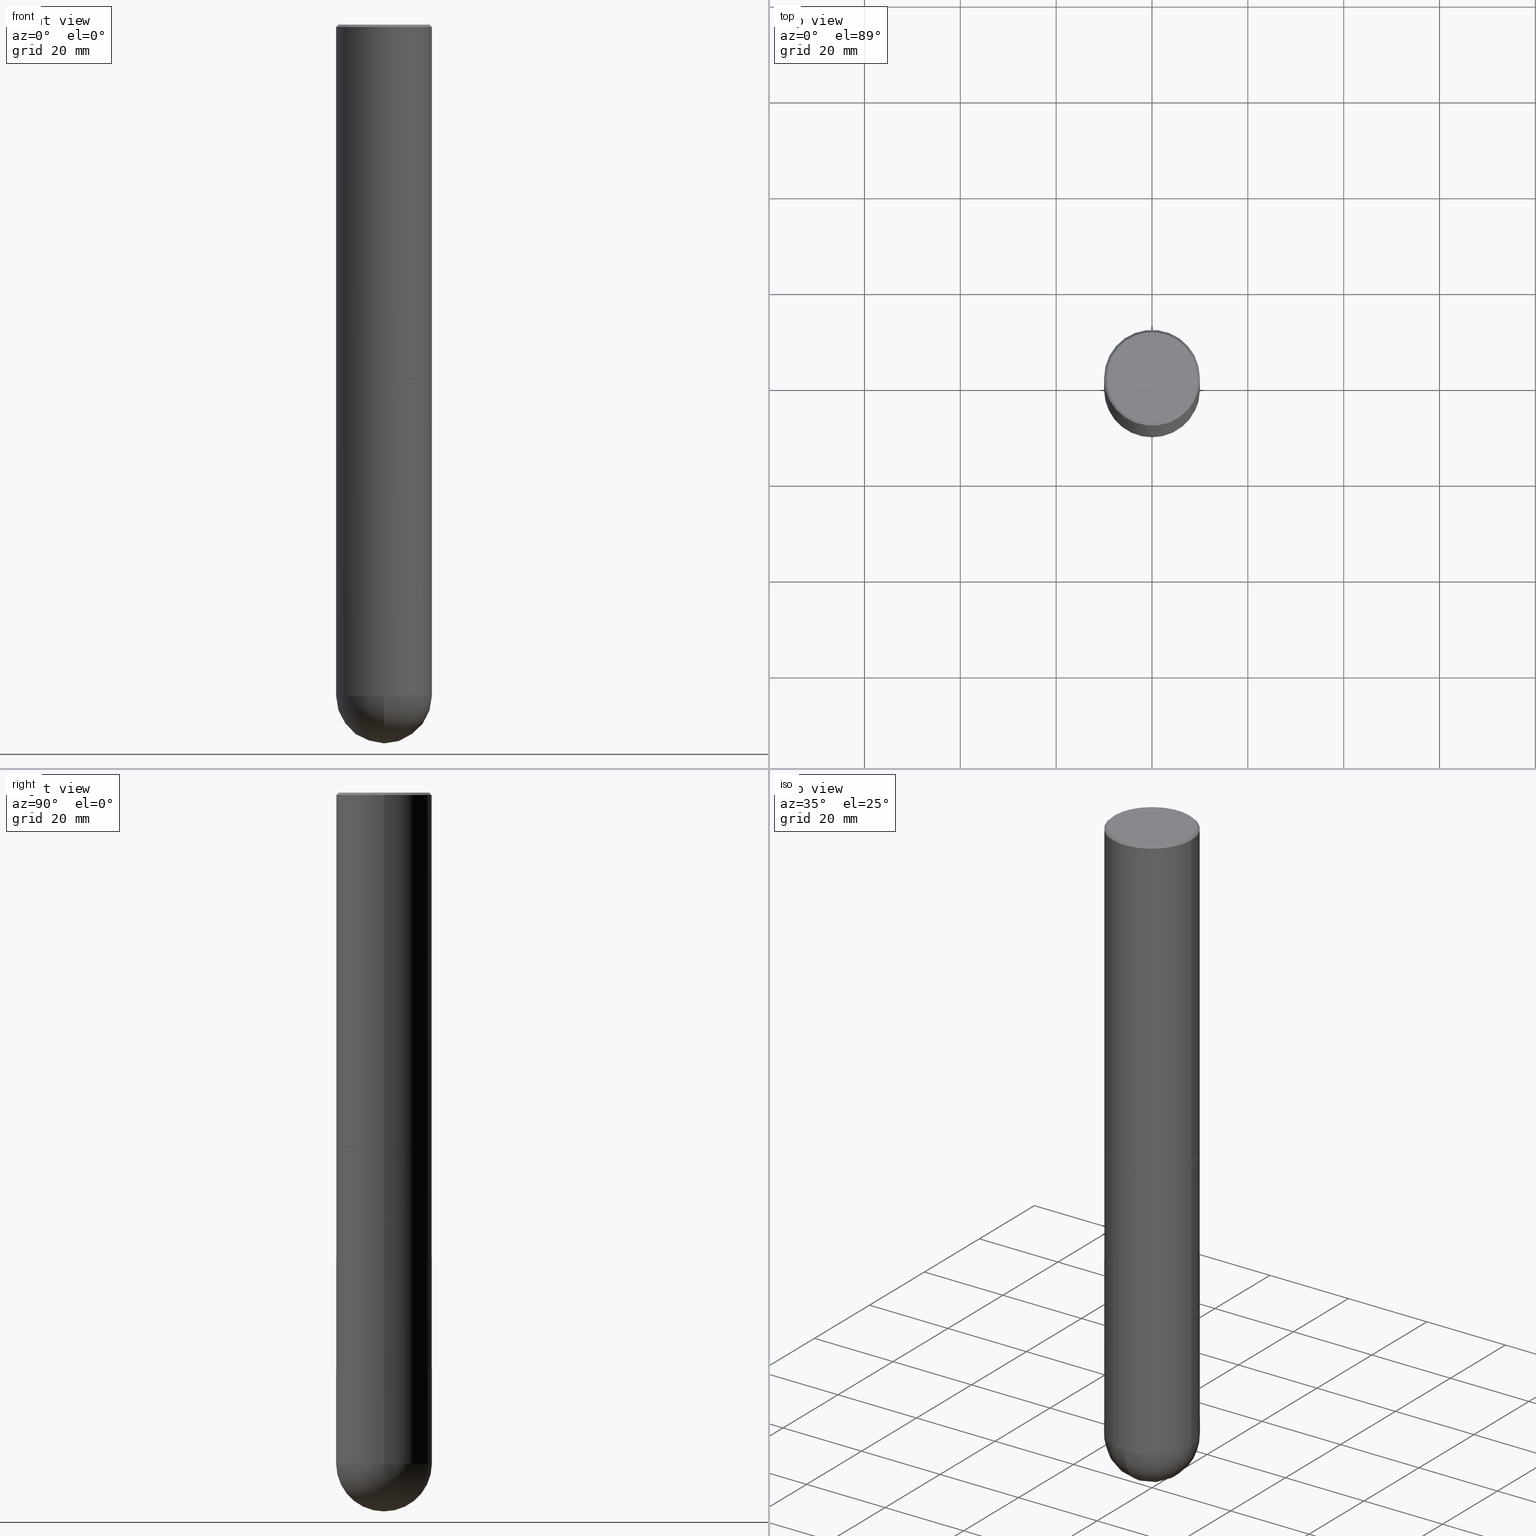
[diagram: canonical four-view strip — front | top / right | iso, engineering-drawing reading convention]
A machine part, canonical four-view strip (front | top / right | iso — engineering-drawing reading convention). The complete STEP part file that produces these views, byte-faithful:
ISO-10303-21;
HEADER;
FILE_DESCRIPTION (( 'STEP AP203' ),
    '1' );
FILE_NAME ('49581.STEP',
    '2024-04-10T12:28:59',
    ( '' ),
    ( '' ),
    'SwSTEP 2.0',
    'SolidWorks 2023',
    '' );
FILE_SCHEMA (( 'CONFIG_CONTROL_DESIGN' ));
ENDSEC;

DATA;
#1 = CYLINDRICAL_SURFACE ( 'NONE', #284, 0.3937000000000001054 ) ;
#2 = APPLICATION_CONTEXT ( 'configuration controlled 3d designs of mechanical parts and assemblies' ) ;
#3 = DIRECTION ( 'NONE',  ( -2.445468806185136597E-29, 3.491481338843145583E-15, 1.000000000000000000 ) ) ;
#4 = VECTOR ( 'NONE', #260, 39.37007874015748143 ) ;
#5 = CARTESIAN_POINT ( 'NONE',  ( 1.314781518801735134E-28, -1.971852921157570065E-14, -5.511800000000000033 ) ) ;
#6 = DIRECTION ( 'NONE',  ( 6.982962677686265922E-15, 1.000000000000000000, -2.775563112689116301E-15 ) ) ;
#7 = CARTESIAN_POINT ( 'NONE',  ( 7.220735744022852519E-29, -1.030929694920215502E-14, -2.952700000000000102 ) ) ;
#8 = CIRCLE ( 'NONE', #76, 0.3926999999999999935 ) ;
#9 = DESIGN_CONTEXT ( 'detailed design', #2, 'design' ) ;
#10 = CARTESIAN_POINT ( 'NONE',  ( 1.412743020541493694E-28, -2.106901824243703318E-14, -5.905499999999999972 ) ) ;
#11 = CC_DESIGN_PERSON_AND_ORGANIZATION_ASSIGNMENT ( #275, #206, ( #238 ) ) ;
#12 = VERTEX_POINT ( 'NONE', #219 ) ;
#13 = EDGE_CURVE ( 'NONE', #343, #245, #139, .T. ) ;
#14 = DIRECTION ( 'NONE',  ( 1.000000000000000000, -6.982962677686265133E-15, 0.000000000000000000 ) ) ;
#15 = ORIENTED_EDGE ( 'NONE', *, *, #256, .T. ) ;
#16 = DIRECTION ( 'NONE',  ( 1.000000000000000000, -6.982962677686266711E-15, 4.876176775795935793E-29 ) ) ;
#17 = ORIENTED_EDGE ( 'NONE', *, *, #33, .F. ) ;
#18 = DIRECTION ( 'NONE',  ( 1.000000000000000000, -6.982962677686269077E-15, 0.000000000000000000 ) ) ;
#19 = VERTEX_POINT ( 'NONE', #120 ) ;
#20 = ORIENTED_EDGE ( 'NONE', *, *, #115, .F. ) ;
#21 = PERSON_AND_ORGANIZATION ( #63, #57 ) ;
#22 = CIRCLE ( 'NONE', #71, 0.3937000000000000499 ) ;
#23 = VERTEX_POINT ( 'NONE', #182 ) ;
#24 = AXIS2_PLACEMENT_3D ( 'NONE', #399, #265, #248 ) ;
#25 = DIRECTION ( 'NONE',  ( 1.000000000000000000, -6.982962677686265922E-15, 4.876176775795935793E-29 ) ) ;
#26 = EDGE_LOOP ( 'NONE', ( #404, #149 ) ) ;
#27 = ORIENTED_EDGE ( 'NONE', *, *, #387, .F. ) ;
#28 = VECTOR ( 'NONE', #352, 39.37007874015748143 ) ;
#29 = EDGE_CURVE ( 'NONE', #170, #147, #301, .T. ) ;
#30 = COORDINATED_UNIVERSAL_TIME_OFFSET ( 5, 0, .BEHIND. ) ;
#31 = PRODUCT_DEFINITION ( 'UNKNOWN', '', #238, #9 ) ;
#32 = DIRECTION ( 'NONE',  ( -2.445468806185136597E-29, 3.491481338843145583E-15, 1.000000000000000000 ) ) ;
#33 = EDGE_CURVE ( 'NONE', #12, #47, #253, .T. ) ;
#34 = FACE_OUTER_BOUND ( 'NONE', #108, .T. ) ;
#35 = LOCAL_TIME ( 8, 28, 59.00000000000000000, #30 ) ;
#36 = CARTESIAN_POINT ( 'NONE',  ( 0.000000000000000000, 0.000000000000000000, 0.000000000000000000 ) ) ;
#37 = DIRECTION ( 'NONE',  ( 1.000000000000000000, -6.982962677686265133E-15, 0.000000000000000000 ) ) ;
#38 = DIRECTION ( 'NONE',  ( 1.000000000000000000, -6.982962677686267499E-15, 0.000000000000000000 ) ) ;
#39 = CIRCLE ( 'NONE', #168, 0.3937000000000000499 ) ;
#40 = LENGTH_MEASURE_WITH_UNIT ( LENGTH_MEASURE( 0.02539999999999999897 ), #310 );
#41 = AXIS2_PLACEMENT_3D ( 'NONE', #157, #240, #38 ) ;
#42 = APPROVAL_DATE_TIME ( #164, #318 ) ;
#43 = DIRECTION ( 'NONE',  ( -2.445468806185136597E-29, 3.491481338843145583E-15, 1.000000000000000000 ) ) ;
#44 = CARTESIAN_POINT ( 'NONE',  ( 2.087702828670439561E-45, -2.980686340760894291E-31, -8.537024980200822558E-17 ) ) ;
#45 = ADVANCED_FACE ( 'NONE', ( #214 ), #1, .T. ) ;
#46 = LINE ( 'NONE', #175, #187 ) ;
#47 = VERTEX_POINT ( 'NONE', #365 ) ;
#48 = CARTESIAN_POINT ( 'NONE',  ( 7.220735744022853640E-29, -1.030929694920215659E-14, -2.952700000000000546 ) ) ;
#49 = CIRCLE ( 'NONE', #96, 0.3937000000000001054 ) ;
#50 = ORIENTED_EDGE ( 'NONE', *, *, #322, .F. ) ;
#51 = APPROVAL_STATUS ( 'not_yet_approved' ) ;
#52 = DIRECTION ( 'NONE',  ( 0.7071067811865461294, -7.319954787623251312E-15, -0.7071067811865489050 ) ) ;
#53 = DIRECTION ( 'NONE',  ( -1.000000000000000000, 7.105427357601001070E-15, -4.926315508542082329E-29 ) ) ;
#54 = ORIENTED_EDGE ( 'NONE', *, *, #29, .F. ) ;
#55 = VERTEX_POINT ( 'NONE', #320 ) ;
#56 = VERTEX_POINT ( 'NONE', #319 ) ;
#57 = ORGANIZATION ( 'UNSPECIFIED', 'UNSPECIFIED', '' ) ;
#58 = FACE_OUTER_BOUND ( 'NONE', #158, .T. ) ;
#59 = COORDINATED_UNIVERSAL_TIME_OFFSET ( 5, 0, .BEHIND. ) ;
#60 = CC_DESIGN_DATE_AND_TIME_ASSIGNMENT ( #124, #261, ( #31 ) ) ;
#61 = DIRECTION ( 'NONE',  ( -1.000000000000000000, 6.982962677686265922E-15, 0.000000000000000000 ) ) ;
#62 = ORIENTED_EDGE ( 'NONE', *, *, #142, .T. ) ;
#63 = PERSON ( 'UNSPECIFIED', 'UNSPECIFIED', 'UNSPECIFIED', ('UNSPECIFIED'), ('UNSPECIFIED'), ('UNSPECIFIED') ) ;
#64 = EDGE_CURVE ( 'NONE', #143, #56, #412, .T. ) ;
#65 = PLANE ( 'NONE',  #356 ) ;
#66 = PERSON_AND_ORGANIZATION ( #63, #57 ) ;
#67 = CARTESIAN_POINT ( 'NONE',  ( -0.3937000000000003830, -2.390410796632568923E-15, -2.951700000000000212 ) ) ;
#68 = CARTESIAN_POINT ( 'NONE',  ( -0.3937000000000001054, 2.797406750687515181E-15, -1.936584745033357016E-29 ) ) ;
#69 = ADVANCED_FACE ( 'NONE', ( #58 ), #123, .F. ) ;
#70 = DIRECTION ( 'NONE',  ( -2.445468806185136597E-29, 3.491481338843145583E-15, 1.000000000000000000 ) ) ;
#71 = AXIS2_PLACEMENT_3D ( 'NONE', #207, #218, #391 ) ;
#72 = AXIS2_PLACEMENT_3D ( 'NONE', #129, #232, #25 ) ;
#73 = LINE ( 'NONE', #68, #28 ) ;
#74 = DIRECTION ( 'NONE',  ( 2.438088387897960049E-29, -3.491481338843145188E-15, -1.000000000000000000 ) ) ;
#75 = DIRECTION ( 'NONE',  ( -2.445468806185136597E-29, 3.491481338843145583E-15, 1.000000000000000000 ) ) ;
#76 = AXIS2_PLACEMENT_3D ( 'NONE', #138, #70, #37 ) ;
#77 = DIRECTION ( 'NONE',  ( 0.000000000000000000, 0.000000000000000000, 1.000000000000000000 ) ) ;
#78 = ORIENTED_EDGE ( 'NONE', *, *, #200, .F. ) ;
#79 =( NAMED_UNIT ( * ) PLANE_ANGLE_UNIT ( ) SI_UNIT ( $, .RADIAN. ) );
#80 = ORIENTED_EDGE ( 'NONE', *, *, #327, .T. ) ;
#81 = ORIENTED_EDGE ( 'NONE', *, *, #142, .F. ) ;
#82 = CARTESIAN_POINT ( 'NONE',  ( 0.000000000000000000, 0.000000000000000000, 0.000000000000000000 ) ) ;
#83 = CIRCLE ( 'NONE', #107, 0.3937000000000001054 ) ;
#84 = ORIENTED_EDGE ( 'NONE', *, *, #289, .F. ) ;
#85 = CARTESIAN_POINT ( 'NONE',  ( 0.3926999999999999935, -1.305150639272955380E-14, -2.952700000000000546 ) ) ;
#86 = ORIENTED_EDGE ( 'NONE', *, *, #279, .T. ) ;
#87 = CC_DESIGN_PERSON_AND_ORGANIZATION_ASSIGNMENT ( #221, #287, ( #31 ) ) ;
#88 = LOCAL_TIME ( 8, 28, 59.00000000000000000, #59 ) ;
#89 = FACE_OUTER_BOUND ( 'NONE', #26, .T. ) ;
#90 = CIRCLE ( 'NONE', #127, 0.3737000000000000877 ) ;
#91 = LINE ( 'NONE', #325, #210 ) ;
#92 = DATE_AND_TIME ( #378, #35 ) ;
#93 = DIRECTION ( 'NONE',  ( -2.445468806185136597E-29, 3.491481338843145583E-15, 1.000000000000000000 ) ) ;
#94 = CARTESIAN_POINT ( 'NONE',  ( 0.3937000000000001054, -1.752601430252398275E-14, -5.511800000000000033 ) ) ;
#95 = AXIS2_PLACEMENT_3D ( 'NONE', #407, #53, #283 ) ;
#96 = AXIS2_PLACEMENT_3D ( 'NONE', #388, #196, #326 ) ;
#97 = FACE_OUTER_BOUND ( 'NONE', #286, .T. ) ;
#98 = CARTESIAN_POINT ( 'NONE',  ( 1.347893496593123646E-28, -1.924434684343564878E-14, -5.511800000000000033 ) ) ;
#99 = DIRECTION ( 'NONE',  ( 1.000000000000000000, -6.982962677686266711E-15, 0.000000000000000000 ) ) ;
#100 = EDGE_CURVE ( 'NONE', #47, #23, #376, .T. ) ;
#101 = CIRCLE ( 'NONE', #160, 0.3937000000000001054 ) ;
#102 = DIRECTION ( 'NONE',  ( 1.000000000000000000, -6.982962677686269077E-15, 0.000000000000000000 ) ) ;
#103 = ADVANCED_FACE ( 'NONE', ( #281 ), #159, .T. ) ;
#104 = PRODUCT_RELATED_PRODUCT_CATEGORY ( 'detail', '', ( #197 ) ) ;
#105 = AXIS2_PLACEMENT_3D ( 'NONE', #363, #113, #244 ) ;
#106 = FACE_OUTER_BOUND ( 'NONE', #254, .T. ) ;
#107 = AXIS2_PLACEMENT_3D ( 'NONE', #328, #166, #162 ) ;
#108 = EDGE_LOOP ( 'NONE', ( #190, #116, #342, #183 ) ) ;
#109 = FACE_OUTER_BOUND ( 'NONE', #338, .T. ) ;
#110 = ORIENTED_EDGE ( 'NONE', *, *, #100, .F. ) ;
#111 = DIRECTION ( 'NONE',  ( 1.000000000000000000, 0.000000000000000000, 0.000000000000000000 ) ) ;
#112 = MANIFOLD_SOLID_BREP ( 'Body-Move/Copy2[2]', #292 ) ;
#113 = DIRECTION ( 'NONE',  ( 2.445468806185136597E-29, -3.491481338843145583E-15, -1.000000000000000000 ) ) ;
#114 = ORIENTED_EDGE ( 'NONE', *, *, #33, .T. ) ;
#115 = EDGE_CURVE ( 'NONE', #12, #316, #195, .T. ) ;
#116 = ORIENTED_EDGE ( 'NONE', *, *, #13, .T. ) ;
#117 = EDGE_LOOP ( 'NONE', ( #121, #308, #339, #110 ) ) ;
#118 = CALENDAR_DATE ( 2024, 10, 4 ) ;
#119 = APPROVAL_ROLE ( '' ) ;
#120 = CARTESIAN_POINT ( 'NONE',  ( -0.3937000000000000499, 2.679362779428219918E-15, -0.02000000000000009062 ) ) ;
#121 = ORIENTED_EDGE ( 'NONE', *, *, #374, .T. ) ;
#122 = ADVANCED_FACE ( 'NONE', ( #89 ), #65, .F. ) ;
#123 = PLANE ( 'NONE',  #72 ) ;
#124 = DATE_AND_TIME ( #409, #347 ) ;
#125 = LOCAL_TIME ( 8, 28, 59.00000000000000000, #340 ) ;
#126 = UNCERTAINTY_MEASURE_WITH_UNIT (LENGTH_MEASURE( 1.000000000000000082E-05 ), #397, 'distance_accuracy_value', 'NONE');
#127 = AXIS2_PLACEMENT_3D ( 'NONE', #274, #233, #271 ) ;
#128 = ADVANCED_FACE ( 'NONE', ( #194 ), #169, .T. ) ;
#129 = CARTESIAN_POINT ( 'NONE',  ( 7.220735744022853640E-29, -1.030929694920215659E-14, -2.952700000000000546 ) ) ;
#130 = DIRECTION ( 'NONE',  ( 1.000000000000000000, -6.982962677686266711E-15, 4.876176775795935793E-29 ) ) ;
#131 = CARTESIAN_POINT ( 'NONE',  ( 2.749192406205155397E-15, 0.3936999999999897248, -2.952700000000001435 ) ) ;
#132 = CC_DESIGN_SECURITY_CLASSIFICATION ( #226, ( #238 ) ) ;
#133 = CIRCLE ( 'NONE', #403, 0.3937000000000000499 ) ;
#134 = DIRECTION ( 'NONE',  ( 1.000000000000000000, -6.982962677686265922E-15, 0.000000000000000000 ) ) ;
#135 = APPROVAL ( #191, 'UNSPECIFIED' ) ;
#136 = DIRECTION ( 'NONE',  ( -0.7071067811865232589, 7.493145998870265808E-15, 0.7071067811865715536 ) ) ;
#137 = EDGE_CURVE ( 'NONE', #251, #19, #91, .T. ) ;
#138 = CARTESIAN_POINT ( 'NONE',  ( 7.220735744022853640E-29, -1.030929694920215659E-14, -2.952700000000000546 ) ) ;
#139 = CIRCLE ( 'NONE', #95, 0.3937000000000001054 ) ;
#140 = DIRECTION ( 'NONE',  ( 1.000000000000000000, -6.982962677686267499E-15, 0.000000000000000000 ) ) ;
#141 = LINE ( 'NONE', #172, #354 ) ;
#142 = EDGE_CURVE ( 'NONE', #249, #55, #234, .T. ) ;
#143 = VERTEX_POINT ( 'NONE', #94 ) ;
#144 = AXIS2_PLACEMENT_3D ( 'NONE', #361, #77, #111 ) ;
#145 = AXIS2_PLACEMENT_3D ( 'NONE', #349, #93, #264 ) ;
#146 = DIRECTION ( 'NONE',  ( 1.000000000000000000, -6.982962677686265133E-15, 0.000000000000000000 ) ) ;
#147 = VERTEX_POINT ( 'NONE', #295 ) ;
#148 = DIRECTION ( 'NONE',  ( 1.000000000000000000, -6.982962677686266711E-15, 0.000000000000000000 ) ) ;
#149 = ORIENTED_EDGE ( 'NONE', *, *, #29, .T. ) ;
#150 = CALENDAR_DATE ( 2024, 10, 4 ) ;
#151 = ORIENTED_EDGE ( 'NONE', *, *, #279, .F. ) ;
#152 = PERSON_AND_ORGANIZATION_ROLE ( 'design_owner' ) ;
#153 = CC_DESIGN_APPROVAL ( #135, ( #31 ) ) ;
#154 = AXIS2_PLACEMENT_3D ( 'NONE', #177, #381, #148 ) ;
#155 = EDGE_LOOP ( 'NONE', ( #290, #15, #306, #17 ) ) ;
#156 = PERSON_AND_ORGANIZATION_ROLE ( 'classification_officer' ) ;
#157 = CARTESIAN_POINT ( 'NONE',  ( 7.220735744022852519E-29, -1.030929694920215502E-14, -2.952700000000000102 ) ) ;
#158 = EDGE_LOOP ( 'NONE', ( #20, #213 ) ) ;
#159 = CYLINDRICAL_SURFACE ( 'NONE', #24, 0.3937000000000001054 ) ;
#160 = AXIS2_PLACEMENT_3D ( 'NONE', #98, #32, #99 ) ;
#161 = CARTESIAN_POINT ( 'NONE',  ( -0.3926999999999999935, -7.513697171524020413E-15, -2.952700000000000546 ) ) ;
#162 = DIRECTION ( 'NONE',  ( 6.982962677686265133E-15, 1.000000000000000000, 0.000000000000000000 ) ) ;
#163 = APPROVAL_PERSON_ORGANIZATION ( #367, #318, #313 ) ;
#164 = DATE_AND_TIME ( #150, #243 ) ;
#165 = DIRECTION ( 'NONE',  ( -2.445468806185136597E-29, 3.491481338843145583E-15, 1.000000000000000000 ) ) ;
#166 = DIRECTION ( 'NONE',  ( 1.000000000000000000, -6.982962677686265922E-15, 4.883557194083112340E-29 ) ) ;
#167 = LINE ( 'NONE', #237, #285 ) ;
#168 = AXIS2_PLACEMENT_3D ( 'NONE', #386, #3, #134 ) ;
#169 = CONICAL_SURFACE ( 'NONE', #405, 0.3937000000000000499, 0.7853981633974463916 ) ;
#170 = VERTEX_POINT ( 'NONE', #355 ) ;
#171 = PERSON_AND_ORGANIZATION ( #63, #57 ) ;
#172 = CARTESIAN_POINT ( 'NONE',  ( 0.3937000000000000499, -2.770807688499515734E-15, -0.02000000000000009062 ) ) ;
#173 = DIRECTION ( 'NONE',  ( 1.000000000000000000, -6.982962677686266711E-15, 4.877734241229874566E-29 ) ) ;
#174 = APPLICATION_CONTEXT ( 'configuration controlled 3d designs of mechanical parts and assemblies' ) ;
#175 = CARTESIAN_POINT ( 'NONE',  ( -0.3937000000000000499, 2.679362779428219918E-15, -0.02000000000000009062 ) ) ;
#176 = EDGE_LOOP ( 'NONE', ( #321, #86, #372, #314, #184 ) ) ;
#177 = CARTESIAN_POINT ( 'NONE',  ( 1.347893496593123646E-28, -1.924434684343564878E-14, -5.511800000000000033 ) ) ;
#178 = CONICAL_SURFACE ( 'NONE', #105, 0.3937000000000000499, 0.7853981633974463916 ) ;
#179 = CARTESIAN_POINT ( 'NONE',  ( 7.220735744022853640E-29, -1.030929694920215659E-14, -2.952700000000000546 ) ) ;
#180 = ORIENTED_EDGE ( 'NONE', *, *, #276, .T. ) ;
#181 = COORDINATED_UNIVERSAL_TIME_OFFSET ( 5, 0, .BEHIND. ) ;
#182 = CARTESIAN_POINT ( 'NONE',  ( 0.3937000000000000499, -2.770807688499515734E-15, -0.02000000000000009062 ) ) ;
#183 = ORIENTED_EDGE ( 'NONE', *, *, #302, .F. ) ;
#184 = ORIENTED_EDGE ( 'NONE', *, *, #64, .T. ) ;
#185 = ORIENTED_EDGE ( 'NONE', *, *, #64, .F. ) ;
#186 = PERSON_AND_ORGANIZATION ( #63, #57 ) ;
#187 = VECTOR ( 'NONE', #359, 39.37007874015748143 ) ;
#188 = DIRECTION ( 'NONE',  ( 2.445468806185136597E-29, -3.491481338843145583E-15, -1.000000000000000000 ) ) ;
#189 = DIRECTION ( 'NONE',  ( -2.445468806185136877E-29, 3.491481338843145188E-15, 1.000000000000000000 ) ) ;
#190 = ORIENTED_EDGE ( 'NONE', *, *, #199, .F. ) ;
#191 = APPROVAL_STATUS ( 'not_yet_approved' ) ;
#192 = DIRECTION ( 'NONE',  ( -2.445468806185136597E-29, 3.491481338843145583E-15, 1.000000000000000000 ) ) ;
#193 = ADVANCED_FACE ( 'NONE', ( #299 ), #204, .T. ) ;
#194 = FACE_OUTER_BOUND ( 'NONE', #282, .T. ) ;
#195 = CIRCLE ( 'NONE', #145, 0.3926999999999999935 ) ;
#196 = DIRECTION ( 'NONE',  ( -2.445468806185136597E-29, 3.491481338843145583E-15, 1.000000000000000000 ) ) ;
#197 = PRODUCT ( '49581', '49581', '', ( #315 ) ) ;
#198 = DIRECTION ( 'NONE',  ( -1.000000000000000000, 6.982962677686265922E-15, -4.876176775795935793E-29 ) ) ;
#199 = EDGE_CURVE ( 'NONE', #343, #56, #83, .T. ) ;
#200 = EDGE_CURVE ( 'NONE', #251, #47, #273, .T. ) ;
#201 = FACE_OUTER_BOUND ( 'NONE', #312, .T. ) ;
#202 = CONICAL_SURFACE ( 'NONE', #208, 0.3926999999999999935, 0.7853981633974141952 ) ;
#203 = ADVANCED_FACE ( 'NONE', ( #97 ), #358, .F. ) ;
#204 = SPHERICAL_SURFACE ( 'NONE', #335, 0.3937000000000001054 ) ;
#205 = CARTESIAN_POINT ( 'NONE',  ( -0.3937000000000000499, -1.197941514563138553E-14, -2.952700000000000102 ) ) ;
#206 = PERSON_AND_ORGANIZATION_ROLE ( 'creator' ) ;
#207 = CARTESIAN_POINT ( 'NONE',  ( 4.890937612370295054E-31, -6.982962677686322424E-17, -0.02000000000000009062 ) ) ;
#208 = AXIS2_PLACEMENT_3D ( 'NONE', #179, #75, #146 ) ;
#209 = DIMENSIONAL_EXPONENTS ( 1.000000000000000000, 0.000000000000000000, 0.000000000000000000, 0.000000000000000000, 0.000000000000000000, 0.000000000000000000, 0.000000000000000000 ) ;
#210 = VECTOR ( 'NONE', #189, 39.37007874015748143 ) ;
#211 = CC_DESIGN_PERSON_AND_ORGANIZATION_ASSIGNMENT ( #171, #294, ( #238 ) ) ;
#212 = CARTESIAN_POINT ( 'NONE',  ( 0.3937000000000001054, -2.749192406205084005E-15, 1.919750796630860452E-29 ) ) ;
#213 = ORIENTED_EDGE ( 'NONE', *, *, #327, .F. ) ;
#214 = FACE_OUTER_BOUND ( 'NONE', #247, .T. ) ;
#215 =( NAMED_UNIT ( * ) SI_UNIT ( $, .STERADIAN. ) SOLID_ANGLE_UNIT ( ) );
#216 = ORIENTED_EDGE ( 'NONE', *, *, #341, .T. ) ;
#217 = APPLICATION_PROTOCOL_DEFINITION ( 'international standard', 'config_control_design', 1994, #2 ) ;
#218 = DIRECTION ( 'NONE',  ( -2.445468806185136597E-29, 3.491481338843145583E-15, 1.000000000000000000 ) ) ;
#219 = CARTESIAN_POINT ( 'NONE',  ( 0.3926999999999999935, -1.305150639272955380E-14, -2.952700000000000546 ) ) ;
#220 = DIRECTION ( 'NONE',  ( 0.7071067811865232589, -2.468850131082003836E-15, 0.7071067811865715536 ) ) ;
#221 = PERSON_AND_ORGANIZATION ( #63, #57 ) ;
#222 = APPROVAL_DATE_TIME ( #348, #266 ) ;
#223 = CARTESIAN_POINT ( 'NONE',  ( 2.609533152651358198E-15, 0.3737000000000000877, -1.347451701226688099E-15 ) ) ;
#224 = ORIENTED_EDGE ( 'NONE', *, *, #402, .T. ) ;
#225 = ADVANCED_FACE ( 'NONE', ( #34 ), #350, .T. ) ;
#226 = SECURITY_CLASSIFICATION ( '', '', #380 ) ;
#227 = CARTESIAN_POINT ( 'NONE',  ( 4.890937612370295054E-31, -6.982962677686322424E-17, -0.02000000000000009062 ) ) ;
#228 = EDGE_LOOP ( 'NONE', ( #400, #369, #185, #50 ) ) ;
#229 = PERSON_AND_ORGANIZATION ( #63, #57 ) ;
#230 = EDGE_CURVE ( 'NONE', #23, #19, #39, .T. ) ;
#231 = SHAPE_DEFINITION_REPRESENTATION ( #411, #396 ) ;
#232 = DIRECTION ( 'NONE',  ( -2.438088387897960049E-29, 3.491481338843145188E-15, 1.000000000000000000 ) ) ;
#233 = DIRECTION ( 'NONE',  ( -2.445468806185136597E-29, 3.491481338843145583E-15, 1.000000000000000000 ) ) ;
#234 = CIRCLE ( 'NONE', #41, 0.3937000000000000499 ) ;
#235 = DIRECTION ( 'NONE',  ( -2.445468806185136597E-29, 3.491481338843145583E-15, 1.000000000000000000 ) ) ;
#236 = DIRECTION ( 'NONE',  ( -2.445468806185136597E-29, 3.491481338843145583E-15, 1.000000000000000000 ) ) ;
#237 = CARTESIAN_POINT ( 'NONE',  ( -0.3926999999999999935, -7.518995625872242816E-15, -2.952700000000000546 ) ) ;
#238 = PRODUCT_DEFINITION_FORMATION_WITH_SPECIFIED_SOURCE ( 'ANY', '', #197, .NOT_KNOWN. ) ;
#239 = AXIS2_PLACEMENT_3D ( 'NONE', #131, #74, #198 ) ;
#240 = DIRECTION ( 'NONE',  ( -2.445468806185136597E-29, 3.491481338843145583E-15, 1.000000000000000000 ) ) ;
#241 = DIRECTION ( 'NONE',  ( -2.445468806185136597E-29, 3.491481338843145583E-15, 1.000000000000000000 ) ) ;
#242 = DIRECTION ( 'NONE',  ( -2.445468806185136597E-29, 3.491481338843145583E-15, 1.000000000000000000 ) ) ;
#243 = LOCAL_TIME ( 8, 28, 59.00000000000000000, #181 ) ;
#244 = DIRECTION ( 'NONE',  ( -1.000000000000000000, 6.982962677686265922E-15, 0.000000000000000000 ) ) ;
#245 = VERTEX_POINT ( 'NONE', #384 ) ;
#246 = FACE_OUTER_BOUND ( 'NONE', #155, .T. ) ;
#247 = EDGE_LOOP ( 'NONE', ( #151, #277, #280, #401, #81 ) ) ;
#248 = DIRECTION ( 'NONE',  ( 1.000000000000000000, -6.982962677686266711E-15, 4.876176775795935793E-29 ) ) ;
#249 = VERTEX_POINT ( 'NONE', #205 ) ;
#250 = CYLINDRICAL_SURFACE ( 'NONE', #382, 0.3937000000000001609 ) ;
#251 = VERTEX_POINT ( 'NONE', #67 ) ;
#252 = AXIS2_PLACEMENT_3D ( 'NONE', #48, #242, #14 ) ;
#253 = LINE ( 'NONE', #85, #263 ) ;
#254 = EDGE_LOOP ( 'NONE', ( #27, #84, #216, #224 ) ) ;
#255 = CALENDAR_DATE ( 2024, 10, 4 ) ;
#256 = EDGE_CURVE ( 'NONE', #316, #251, #167, .T. ) ;
#257 = DIRECTION ( 'NONE',  ( -2.445468806185136597E-29, 3.491481338843145583E-15, 1.000000000000000000 ) ) ;
#258 = APPROVAL_DATE_TIME ( #373, #135 ) ;
#259 = APPROVAL_STATUS ( 'not_yet_approved' ) ;
#260 = DIRECTION ( 'NONE',  ( -2.445468806185136877E-29, 3.491481338843145188E-15, 1.000000000000000000 ) ) ;
#261 = DATE_TIME_ROLE ( 'creation_date' ) ;
#262 = APPROVAL_PERSON_ORGANIZATION ( #66, #266, #119 ) ;
#263 = VECTOR ( 'NONE', #220, 39.37007874015748854 ) ;
#264 = DIRECTION ( 'NONE',  ( 1.000000000000000000, -6.982962677686265133E-15, 0.000000000000000000 ) ) ;
#265 = DIRECTION ( 'NONE',  ( -2.445468806185136597E-29, 3.491481338843145583E-15, 1.000000000000000000 ) ) ;
#266 = APPROVAL ( #259, 'UNSPECIFIED' ) ;
#267 = CIRCLE ( 'NONE', #296, 0.3937000000000002720 ) ;
#268 = DIRECTION ( 'NONE',  ( 6.982962677686265922E-15, 1.000000000000000000, -2.775563112689116301E-15 ) ) ;
#269 = CLOSED_SHELL ( 'NONE', ( #103, #225, #193, #203, #45 ) ) ;
#270 = CARTESIAN_POINT ( 'NONE',  ( 1.314781518801735134E-28, -1.971852921157570065E-14, -5.511800000000000033 ) ) ;
#271 = DIRECTION ( 'NONE',  ( 1.000000000000000000, -6.982962677686266711E-15, 4.877734241229874566E-29 ) ) ;
#272 = DIRECTION ( 'NONE',  ( 1.000000000000000000, -6.982962677686266711E-15, 4.876176775795935793E-29 ) ) ;
#273 = CIRCLE ( 'NONE', #309, 0.3937000000000002720 ) ;
#274 = CARTESIAN_POINT ( 'NONE',  ( 2.087702828670439561E-45, -2.980686340760894291E-31, -8.537024980200822558E-17 ) ) ;
#275 = PERSON_AND_ORGANIZATION ( #63, #57 ) ;
#276 = EDGE_CURVE ( 'NONE', #55, #249, #133, .T. ) ;
#277 = ORIENTED_EDGE ( 'NONE', *, *, #293, .T. ) ;
#278 = CARTESIAN_POINT ( 'NONE',  ( -0.3937000000000001054, -1.197941514563138553E-14, -5.511800000000000033 ) ) ;
#279 = EDGE_CURVE ( 'NONE', #362, #249, #73, .T. ) ;
#280 = ORIENTED_EDGE ( 'NONE', *, *, #322, .T. ) ;
#281 = FACE_OUTER_BOUND ( 'NONE', #176, .T. ) ;
#282 = EDGE_LOOP ( 'NONE', ( #54, #303, #366, #394 ) ) ;
#283 = DIRECTION ( 'NONE',  ( -7.105427357601001070E-15, -1.000000000000000000, 0.000000000000000000 ) ) ;
#284 = AXIS2_PLACEMENT_3D ( 'NONE', #408, #192, #130 ) ;
#285 = VECTOR ( 'NONE', #136, 39.37007874015748854 ) ;
#286 = EDGE_LOOP ( 'NONE', ( #180, #62 ) ) ;
#287 = PERSON_AND_ORGANIZATION_ROLE ( 'creator' ) ;
#288 = COORDINATED_UNIVERSAL_TIME_OFFSET ( 5, 0, .BEHIND. ) ;
#289 = EDGE_CURVE ( 'NONE', #147, #170, #90, .T. ) ;
#290 = ORIENTED_EDGE ( 'NONE', *, *, #115, .T. ) ;
#291 =( GEOMETRIC_REPRESENTATION_CONTEXT ( 3 ) GLOBAL_UNCERTAINTY_ASSIGNED_CONTEXT ( ( #126 ) ) GLOBAL_UNIT_ASSIGNED_CONTEXT ( ( #397, #79, #215 ) ) REPRESENTATION_CONTEXT ( 'NONE', 'WORKASPACE' ) );
#292 = CLOSED_SHELL ( 'NONE', ( #353, #357, #128, #371, #331, #334, #69, #122 ) ) ;
#293 = EDGE_CURVE ( 'NONE', #362, #245, #49, .T. ) ;
#294 = PERSON_AND_ORGANIZATION_ROLE ( 'design_supplier' ) ;
#295 = CARTESIAN_POINT ( 'NONE',  ( -0.3737000000000000877, 2.644447966039789058E-15, -8.537024980202659124E-17 ) ) ;
#296 = AXIS2_PLACEMENT_3D ( 'NONE', #368, #241, #18 ) ;
#297 = DIRECTION ( 'NONE',  ( -2.445468806185136597E-29, 3.491481338843145583E-15, 1.000000000000000000 ) ) ;
#298 = VECTOR ( 'NONE', #304, 39.37007874015748143 ) ;
#299 = FACE_OUTER_BOUND ( 'NONE', #228, .T. ) ;
#300 = CARTESIAN_POINT ( 'NONE',  ( 1.347893496593123646E-28, -1.924434684343564878E-14, -5.511800000000000033 ) ) ;
#301 = CIRCLE ( 'NONE', #383, 0.3737000000000000877 ) ;
#302 = EDGE_CURVE ( 'NONE', #56, #362, #101, .T. ) ;
#303 = ORIENTED_EDGE ( 'NONE', *, *, #387, .T. ) ;
#304 = DIRECTION ( 'NONE',  ( -2.445468806185136877E-29, 3.491481338843145188E-15, 1.000000000000000000 ) ) ;
#305 = APPLICATION_PROTOCOL_DEFINITION ( 'international standard', 'config_control_design', 1994, #174 ) ;
#306 = ORIENTED_EDGE ( 'NONE', *, *, #374, .F. ) ;
#307 = LINE ( 'NONE', #212, #298 ) ;
#308 = ORIENTED_EDGE ( 'NONE', *, *, #137, .T. ) ;
#309 = AXIS2_PLACEMENT_3D ( 'NONE', #351, #297, #102 ) ;
#310 =( LENGTH_UNIT ( ) NAMED_UNIT ( * ) SI_UNIT ( $, .METRE. ) );
#311 = ORIENTED_EDGE ( 'NONE', *, *, #402, .F. ) ;
#312 = EDGE_LOOP ( 'NONE', ( #398, #375, #344, #311 ) ) ;
#313 = APPROVAL_ROLE ( '' ) ;
#314 = ORIENTED_EDGE ( 'NONE', *, *, #345, .F. ) ;
#315 = MECHANICAL_CONTEXT ( 'NONE', #174, 'mechanical' ) ;
#316 = VERTEX_POINT ( 'NONE', #161 ) ;
#317 = CC_DESIGN_APPROVAL ( #266, ( #226 ) ) ;
#318 = APPROVAL ( #51, 'UNSPECIFIED' ) ;
#319 = CARTESIAN_POINT ( 'NONE',  ( 2.749192406205216928E-15, 0.3936999999999805655, -5.511800000000000921 ) ) ;
#320 = CARTESIAN_POINT ( 'NONE',  ( 0.3937000000000000499, -1.305848935540723823E-14, -2.952700000000000102 ) ) ;
#321 = ORIENTED_EDGE ( 'NONE', *, *, #302, .T. ) ;
#322 = EDGE_CURVE ( 'NONE', #245, #143, #390, .T. ) ;
#323 = CARTESIAN_POINT ( 'NONE',  ( 0.3937000000000001609, -2.749192406205084400E-15, 1.919750796630860732E-29 ) ) ;
#324 = AXIS2_PLACEMENT_3D ( 'NONE', #5, #333, #268 ) ;
#325 = CARTESIAN_POINT ( 'NONE',  ( -0.3937000000000001609, 2.797406750687515575E-15, -1.936584745033357296E-29 ) ) ;
#326 = DIRECTION ( 'NONE',  ( 1.000000000000000000, -6.982962677686266711E-15, 0.000000000000000000 ) ) ;
#327 = EDGE_CURVE ( 'NONE', #316, #12, #8, .T. ) ;
#328 = CARTESIAN_POINT ( 'NONE',  ( 1.314781518801735134E-28, -1.971852921157570065E-14, -5.511800000000000033 ) ) ;
#329 = CYLINDRICAL_SURFACE ( 'NONE', #336, 0.3937000000000001609 ) ;
#330 = CC_DESIGN_DATE_AND_TIME_ASSIGNMENT ( #92, #410, ( #226 ) ) ;
#331 = ADVANCED_FACE ( 'NONE', ( #201 ), #329, .T. ) ;
#332 = DIRECTION ( 'NONE',  ( 1.000000000000000000, -6.982962677686266711E-15, 0.000000000000000000 ) ) ;
#333 = DIRECTION ( 'NONE',  ( -1.000000000000000000, 6.982962677686265922E-15, -4.883557194083112340E-29 ) ) ;
#334 = ADVANCED_FACE ( 'NONE', ( #109 ), #360, .T. ) ;
#335 = AXIS2_PLACEMENT_3D ( 'NONE', #270, #389, #6 ) ;
#336 = AXIS2_PLACEMENT_3D ( 'NONE', #36, #165, #272 ) ;
#337 = FACE_OUTER_BOUND ( 'NONE', #117, .T. ) ;
#338 = EDGE_LOOP ( 'NONE', ( #364, #80, #114, #78 ) ) ;
#339 = ORIENTED_EDGE ( 'NONE', *, *, #230, .F. ) ;
#340 = COORDINATED_UNIVERSAL_TIME_OFFSET ( 5, 0, .BEHIND. ) ;
#341 = EDGE_CURVE ( 'NONE', #147, #19, #46, .T. ) ;
#342 = ORIENTED_EDGE ( 'NONE', *, *, #293, .F. ) ;
#343 = VERTEX_POINT ( 'NONE', #10 ) ;
#344 = ORIENTED_EDGE ( 'NONE', *, *, #100, .T. ) ;
#345 = EDGE_CURVE ( 'NONE', #143, #55, #307, .T. ) ;
#346 = DIRECTION ( 'NONE',  ( -1.000000000000000000, 6.982962677686265922E-15, -4.876176775795935793E-29 ) ) ;
#347 = LOCAL_TIME ( 8, 28, 59.00000000000000000, #288 ) ;
#348 = DATE_AND_TIME ( #255, #88 ) ;
#349 = CARTESIAN_POINT ( 'NONE',  ( 7.220735744022853640E-29, -1.030929694920215659E-14, -2.952700000000000546 ) ) ;
#350 = SPHERICAL_SURFACE ( 'NONE', #324, 0.3937000000000001054 ) ;
#351 = CARTESIAN_POINT ( 'NONE',  ( 7.218290275216666916E-29, -1.030580546786331359E-14, -2.951700000000000212 ) ) ;
#352 = DIRECTION ( 'NONE',  ( -2.445468806185136877E-29, 3.491481338843145188E-15, 1.000000000000000000 ) ) ;
#353 = ADVANCED_FACE ( 'NONE', ( #246 ), #202, .T. ) ;
#354 = VECTOR ( 'NONE', #52, 39.37007874015748143 ) ;
#355 = CARTESIAN_POINT ( 'NONE',  ( 0.3737000000000000877, -2.667287895133368753E-15, -8.537024980198977363E-17 ) ) ;
#356 = AXIS2_PLACEMENT_3D ( 'NONE', #223, #379, #346 ) ;
#357 = ADVANCED_FACE ( 'NONE', ( #337 ), #250, .T. ) ;
#358 = PLANE ( 'NONE',  #239 ) ;
#359 = DIRECTION ( 'NONE',  ( -0.7071067811865461294, 2.468850131082242072E-15, -0.7071067811865489050 ) ) ;
#360 = CONICAL_SURFACE ( 'NONE', #252, 0.3926999999999999935, 0.7853981633974141952 ) ;
#361 = CARTESIAN_POINT ( 'NONE',  ( 0.000000000000000000, 0.000000000000000000, 0.000000000000000000 ) ) ;
#362 = VERTEX_POINT ( 'NONE', #278 ) ;
#363 = CARTESIAN_POINT ( 'NONE',  ( 4.890937612370295054E-31, -6.982962677686322424E-17, -0.02000000000000009062 ) ) ;
#364 = ORIENTED_EDGE ( 'NONE', *, *, #256, .F. ) ;
#365 = CARTESIAN_POINT ( 'NONE',  ( 0.3937000000000002720, -1.305499787406839996E-14, -2.951700000000000212 ) ) ;
#366 = ORIENTED_EDGE ( 'NONE', *, *, #230, .T. ) ;
#367 = PERSON_AND_ORGANIZATION ( #63, #57 ) ;
#368 = CARTESIAN_POINT ( 'NONE',  ( 7.218290275216666916E-29, -1.030580546786331359E-14, -2.951700000000000212 ) ) ;
#369 = ORIENTED_EDGE ( 'NONE', *, *, #199, .T. ) ;
#370 = AXIS2_PLACEMENT_3D ( 'NONE', #300, #236, #332 ) ;
#371 = ADVANCED_FACE ( 'NONE', ( #106 ), #178, .T. ) ;
#372 = ORIENTED_EDGE ( 'NONE', *, *, #276, .F. ) ;
#373 = DATE_AND_TIME ( #118, #125 ) ;
#374 = EDGE_CURVE ( 'NONE', #47, #251, #267, .T. ) ;
#375 = ORIENTED_EDGE ( 'NONE', *, *, #200, .T. ) ;
#376 = LINE ( 'NONE', #323, #4 ) ;
#377 = APPROVAL_PERSON_ORGANIZATION ( #229, #135, #406 ) ;
#378 = CALENDAR_DATE ( 2024, 10, 4 ) ;
#379 = DIRECTION ( 'NONE',  ( 2.438088387897960049E-29, -3.491481338843145188E-15, -1.000000000000000000 ) ) ;
#380 = SECURITY_CLASSIFICATION_LEVEL ( 'unclassified' ) ;
#381 = DIRECTION ( 'NONE',  ( -2.445468806185136597E-29, 3.491481338843145583E-15, 1.000000000000000000 ) ) ;
#382 = AXIS2_PLACEMENT_3D ( 'NONE', #82, #43, #16 ) ;
#383 = AXIS2_PLACEMENT_3D ( 'NONE', #44, #257, #173 ) ;
#384 = CARTESIAN_POINT ( 'NONE',  ( -2.797406750687381075E-15, -0.3937000000000196454, -5.511799999999999145 ) ) ;
#385 = CC_DESIGN_PERSON_AND_ORGANIZATION_ASSIGNMENT ( #21, #152, ( #197 ) ) ;
#386 = CARTESIAN_POINT ( 'NONE',  ( 4.890937612370295054E-31, -6.982962677686322424E-17, -0.02000000000000009062 ) ) ;
#387 = EDGE_CURVE ( 'NONE', #170, #23, #141, .T. ) ;
#388 = CARTESIAN_POINT ( 'NONE',  ( 1.347893496593123646E-28, -1.924434684343564878E-14, -5.511800000000000033 ) ) ;
#389 = DIRECTION ( 'NONE',  ( -1.000000000000000000, 6.982962677686265922E-15, -4.883557194083112340E-29 ) ) ;
#390 = CIRCLE ( 'NONE', #370, 0.3937000000000001054 ) ;
#391 = DIRECTION ( 'NONE',  ( 1.000000000000000000, -6.982962677686265922E-15, 0.000000000000000000 ) ) ;
#392 = MANIFOLD_SOLID_BREP ( 'Body-Move/Copy2[1]', #269 ) ;
#393 = CC_DESIGN_APPROVAL ( #318, ( #238 ) ) ;
#394 = ORIENTED_EDGE ( 'NONE', *, *, #341, .F. ) ;
#395 = CC_DESIGN_PERSON_AND_ORGANIZATION_ASSIGNMENT ( #186, #156, ( #226 ) ) ;
#396 = ADVANCED_BREP_SHAPE_REPRESENTATION ( '49581', ( #392, #112, #144 ), #291 ) ;
#397 =( CONVERSION_BASED_UNIT ( 'INCH', #40 ) LENGTH_UNIT ( ) NAMED_UNIT ( #209 ) );
#398 = ORIENTED_EDGE ( 'NONE', *, *, #137, .F. ) ;
#399 = CARTESIAN_POINT ( 'NONE',  ( 0.000000000000000000, 0.000000000000000000, 0.000000000000000000 ) ) ;
#400 = ORIENTED_EDGE ( 'NONE', *, *, #13, .F. ) ;
#401 = ORIENTED_EDGE ( 'NONE', *, *, #345, .T. ) ;
#402 = EDGE_CURVE ( 'NONE', #19, #23, #22, .T. ) ;
#403 = AXIS2_PLACEMENT_3D ( 'NONE', #7, #235, #140 ) ;
#404 = ORIENTED_EDGE ( 'NONE', *, *, #289, .T. ) ;
#405 = AXIS2_PLACEMENT_3D ( 'NONE', #227, #188, #61 ) ;
#406 = APPROVAL_ROLE ( '' ) ;
#407 = CARTESIAN_POINT ( 'NONE',  ( 1.314781518801735134E-28, -1.971852921157570065E-14, -5.511800000000000033 ) ) ;
#408 = CARTESIAN_POINT ( 'NONE',  ( 0.000000000000000000, 0.000000000000000000, 0.000000000000000000 ) ) ;
#409 = CALENDAR_DATE ( 2024, 10, 4 ) ;
#410 = DATE_TIME_ROLE ( 'classification_date' ) ;
#411 = PRODUCT_DEFINITION_SHAPE ( 'NONE', 'NONE',  #31 ) ;
#412 = CIRCLE ( 'NONE', #154, 0.3937000000000001054 ) ;
ENDSEC;
END-ISO-10303-21;
